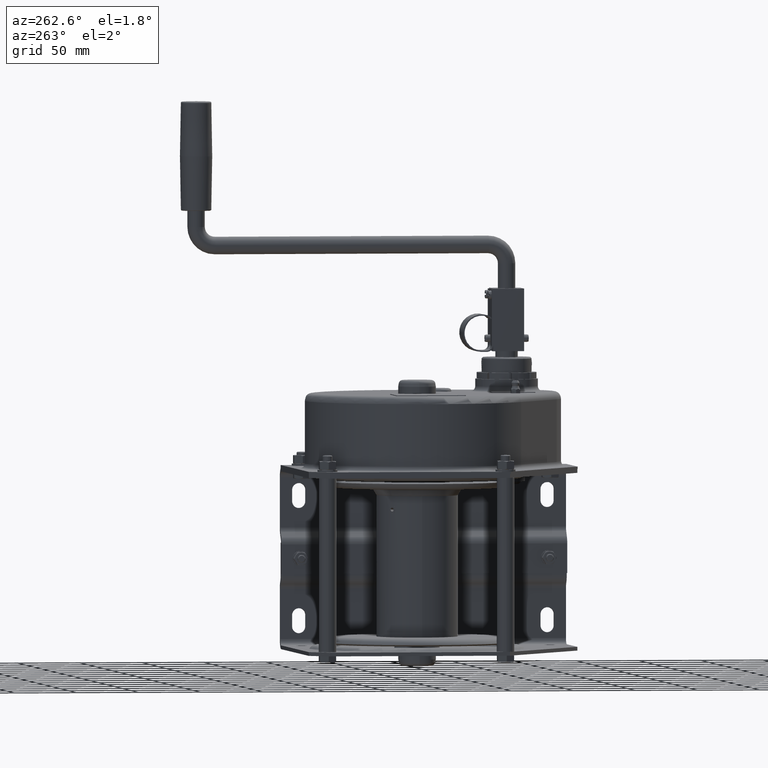
[diagram: clean part render]
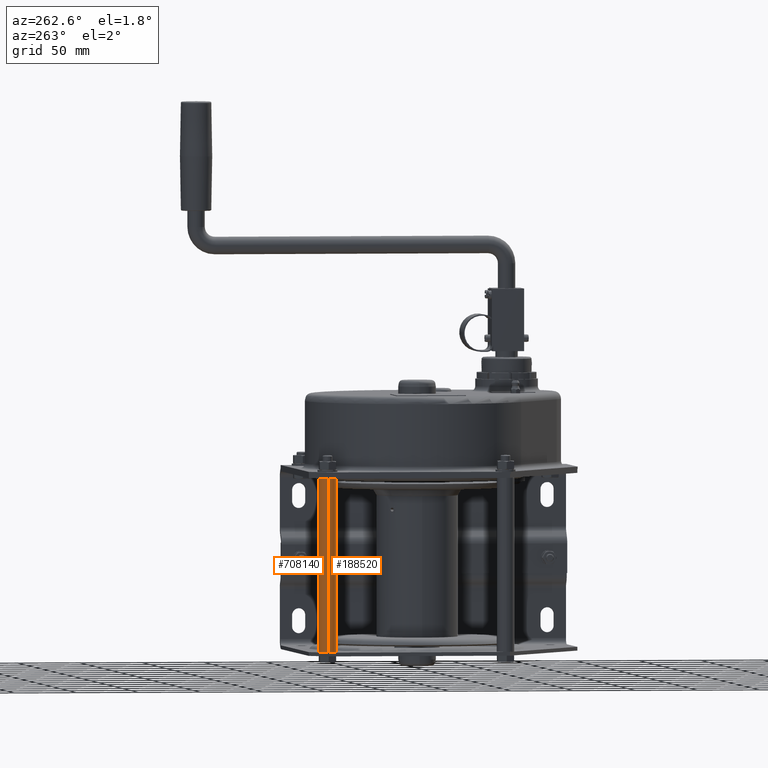
[diagram: same view with one multi-face feature highlighted, each face labeled with its STEP entity id]
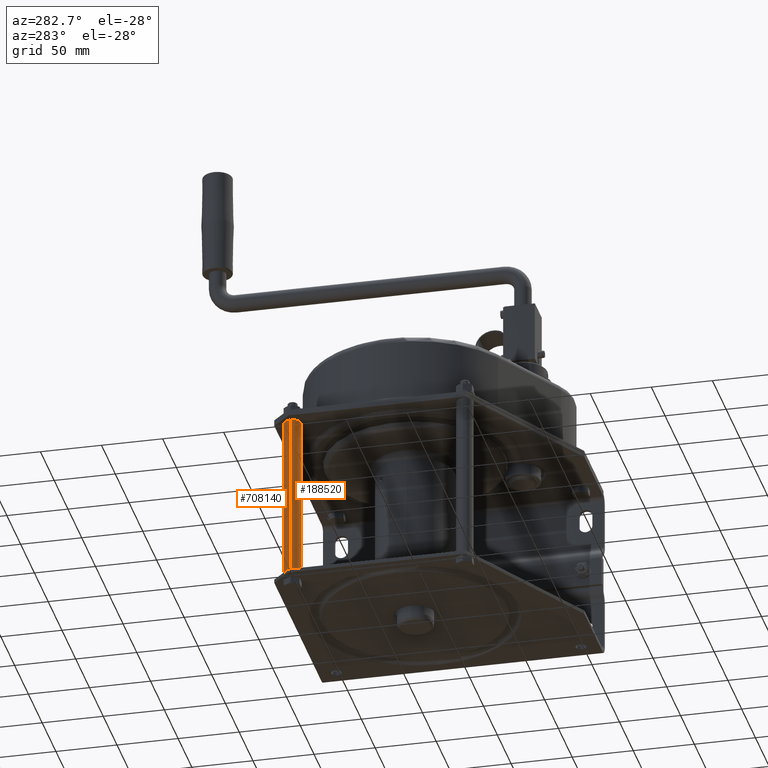
[diagram: same view with one multi-face feature highlighted, each face labeled with its STEP entity id]
A machine part, auxiliary view. The highlighted faces form ONE feature: a constant-radius fillet chain: 2 tangent blend faces with common blend radius 7 mm. The faces share edges in the B-rep.
A second angle (auxiliary view) of the same feature is appended — it is thin or edge-on in the first view.
Their STEP definitions:
[1] entity #188520 (Cylinder):
#40970=CARTESIAN_POINT('',(80.,142.,82.5));
#40980=DIRECTION('',(0.,-1.,0.));
#40990=DIRECTION('',(1.,0.,0.));
#41000=AXIS2_PLACEMENT_3D('',#40970,#40980,#40990);
#41010=CIRCLE('',#41000,7.);
#41020=CARTESIAN_POINT('',(87.,142.,82.5));
#41030=VERTEX_POINT('',#41020);
#41040=CARTESIAN_POINT('',(73.,142.,82.5));
#41050=VERTEX_POINT('',#41040);
#41080=EDGE_CURVE('',#41050,#41030,#41010,.T.);
#57910=CARTESIAN_POINT('',(80.,3.,82.5));
#57920=DIRECTION('',(0.,-1.,0.));
#57930=DIRECTION('',(1.,0.,0.));
#57940=AXIS2_PLACEMENT_3D('',#57910,#57920,#57930);
#57950=CIRCLE('',#57940,7.);
#57960=CARTESIAN_POINT('',(87.,3.,82.5));
#57970=VERTEX_POINT('',#57960);
#57980=CARTESIAN_POINT('',(73.,3.,82.5));
#57990=VERTEX_POINT('',#57980);
#58020=EDGE_CURVE('',#57990,#57970,#57950,.T.);
#188310=CARTESIAN_POINT('',(80.,142.,82.5));
#188320=DIRECTION('',(0.,-1.,0.));
#188330=DIRECTION('',(1.,0.,0.));
#188340=AXIS2_PLACEMENT_3D('',#188310,#188320,#188330);
#188350=CYLINDRICAL_SURFACE('',#188340,7.);
#188360=CARTESIAN_POINT('',(87.,142.,82.5));
#188370=DIRECTION('',(0.,-1.,0.));
#188380=VECTOR('',#188370,1.);
#188390=LINE('',#188360,#188380);
#188400=EDGE_CURVE('',#41030,#57970,#188390,.T.);
#188410=ORIENTED_EDGE('',*,*,#188400,.T.);
#188420=ORIENTED_EDGE('',*,*,#41080,.T.);
#188430=CARTESIAN_POINT('',(73.,142.,82.5));
#188440=DIRECTION('',(0.,-1.,0.));
#188450=VECTOR('',#188440,1.);
#188460=LINE('',#188430,#188450);
#188470=EDGE_CURVE('',#41050,#57990,#188460,.T.);
#188480=ORIENTED_EDGE('',*,*,#188470,.F.);
#188490=ORIENTED_EDGE('',*,*,#58020,.F.);
#188500=EDGE_LOOP('',(#188490,#188480,#188420,#188410));
#188510=FACE_OUTER_BOUND('',#188500,.T.);
#188520=ADVANCED_FACE('',(#188510),#188350,.T.);
[2] entity #708140 (Cylinder):
#40970=CARTESIAN_POINT('',(80.,142.,82.5));
#40980=DIRECTION('',(0.,-1.,0.));
#40990=DIRECTION('',(1.,0.,0.));
#41000=AXIS2_PLACEMENT_3D('',#40970,#40980,#40990);
#41010=CIRCLE('',#41000,7.);
#41020=CARTESIAN_POINT('',(87.,142.,82.5));
#41030=VERTEX_POINT('',#41020);
#41040=CARTESIAN_POINT('',(73.,142.,82.5));
#41050=VERTEX_POINT('',#41040);
#41060=EDGE_CURVE('',#41030,#41050,#41010,.T.);
#57910=CARTESIAN_POINT('',(80.,3.,82.5));
#57920=DIRECTION('',(0.,-1.,0.));
#57930=DIRECTION('',(1.,0.,0.));
#57940=AXIS2_PLACEMENT_3D('',#57910,#57920,#57930);
#57950=CIRCLE('',#57940,7.);
#57960=CARTESIAN_POINT('',(87.,3.,82.5));
#57970=VERTEX_POINT('',#57960);
#57980=CARTESIAN_POINT('',(73.,3.,82.5));
#57990=VERTEX_POINT('',#57980);
#58000=EDGE_CURVE('',#57970,#57990,#57950,.T.);
#188360=CARTESIAN_POINT('',(87.,142.,82.5));
#188370=DIRECTION('',(0.,-1.,0.));
#188380=VECTOR('',#188370,1.);
#188390=LINE('',#188360,#188380);
#188400=EDGE_CURVE('',#41030,#57970,#188390,.T.);
#188430=CARTESIAN_POINT('',(73.,142.,82.5));
#188440=DIRECTION('',(0.,-1.,0.));
#188450=VECTOR('',#188440,1.);
#188460=LINE('',#188430,#188450);
#188470=EDGE_CURVE('',#41050,#57990,#188460,.T.);
#708030=CARTESIAN_POINT('',(80.,142.,82.5));
#708040=DIRECTION('',(0.,-1.,0.));
#708050=DIRECTION('',(1.,0.,0.));
#708060=AXIS2_PLACEMENT_3D('',#708030,#708040,#708050);
#708070=CYLINDRICAL_SURFACE('',#708060,7.);
#708080=ORIENTED_EDGE('',*,*,#58000,.F.);
#708090=ORIENTED_EDGE('',*,*,#188470,.T.);
#708100=ORIENTED_EDGE('',*,*,#41060,.T.);
#708110=ORIENTED_EDGE('',*,*,#188400,.F.);
#708120=EDGE_LOOP('',(#708110,#708100,#708090,#708080));
#708130=FACE_OUTER_BOUND('',#708120,.T.);
#708140=ADVANCED_FACE('',(#708130),#708070,.T.);